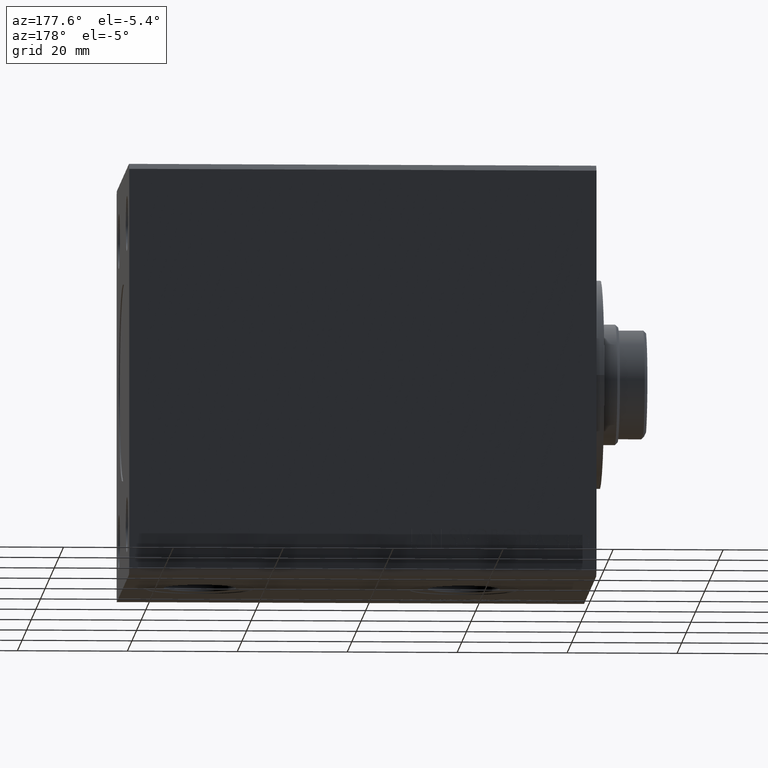
[diagram: clean part render]
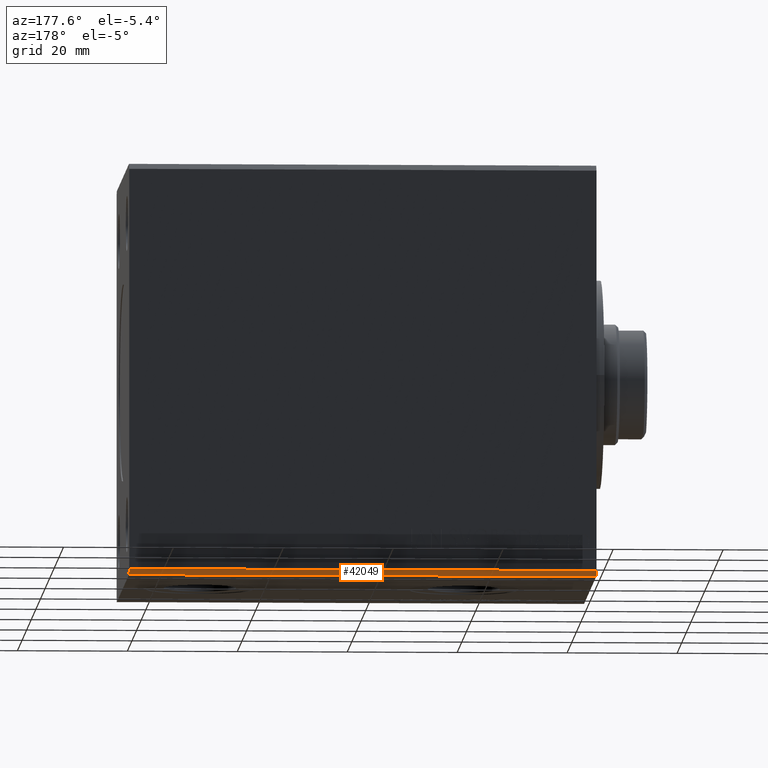
[diagram: same view with one face highlighted and labeled with its STEP entity id]
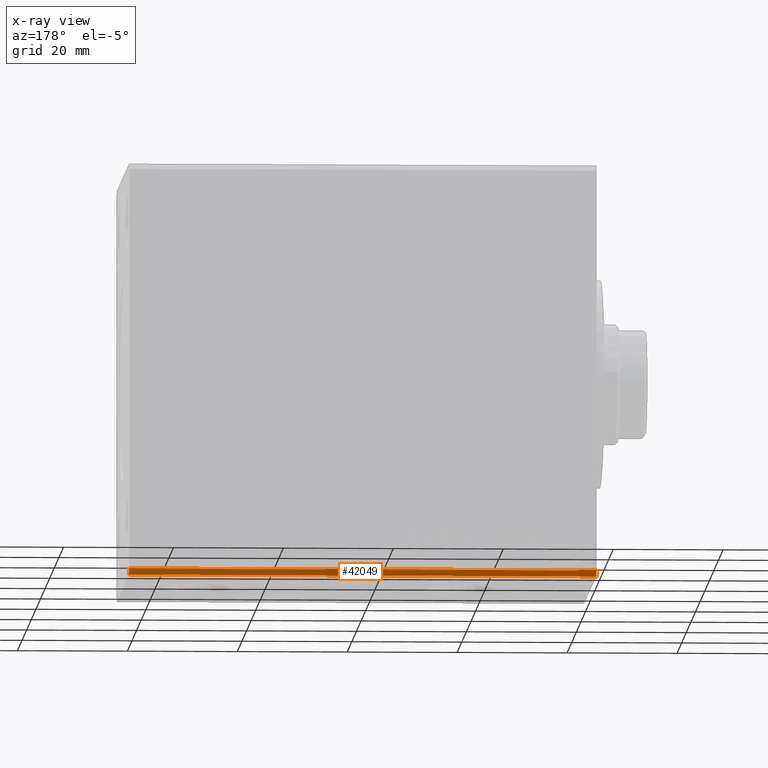
[diagram: x-ray of the same camera — body ghosted, the highlighted face saturated]
A machine part, auxiliary view. The second image highlights one B-rep face of the part: STEP entity #42049.
The next image is the same camera in x-ray: the body ghosted, the highlighted face saturated — about 0% of this face is hidden behind the body in this view.
In plain terms, the highlighted planar face has unit normal (0, -0.7071, 0.7071).
Its self-contained STEP definition (entity closure, byte-faithful):
#765 = DIRECTION ( 'NONE',  ( 0.000000000000000000, 0.7071067811865474617, 0.7071067811865474617 ) ) ;
#1284 = CARTESIAN_POINT ( 'NONE',  ( 85.00000000000000000, 26.50000000000000711, -37.49999999999999289 ) ) ;
#1953 = CARTESIAN_POINT ( 'NONE',  ( 0.000000000000000000, 27.50000000000000711, -36.49999999999999289 ) ) ;
#2169 = VECTOR ( 'NONE', #21102, 1000.000000000000000 ) ;
#2299 = VERTEX_POINT ( 'NONE', #1953 ) ;
#4715 = EDGE_CURVE ( 'NONE', #28725, #37447, #31591, .T. ) ;
#7520 = LINE ( 'NONE', #28467, #2169 ) ;
#7631 = FACE_OUTER_BOUND ( 'NONE', #33090, .T. ) ;
#7947 = CARTESIAN_POINT ( 'NONE',  ( 85.00000000000000000, 26.50000000000000711, -37.49999999999999289 ) ) ;
#9024 = EDGE_CURVE ( 'NONE', #17142, #2299, #7520, .T. ) ;
#9328 = EDGE_CURVE ( 'NONE', #28725, #17142, #37830, .T. ) ;
#10542 = ORIENTED_EDGE ( 'NONE', *, *, #9328, .F. ) ;
#11172 = DIRECTION ( 'NONE',  ( 0.000000000000000000, -0.7071067811865474617, -0.7071067811865474617 ) ) ;
#11195 = CARTESIAN_POINT ( 'NONE',  ( 0.000000000000000000, 26.50000000000000711, -37.49999999999999289 ) ) ;
#13637 = AXIS2_PLACEMENT_3D ( 'NONE', #41993, #21212, #11172 ) ;
#17142 = VERTEX_POINT ( 'NONE', #27375 ) ;
#17457 = ORIENTED_EDGE ( 'NONE', *, *, #4715, .T. ) ;
#18307 = PLANE ( 'NONE',  #13637 ) ;
#20834 = CARTESIAN_POINT ( 'NONE',  ( 85.00000000000000000, 26.50000000000000711, -37.49999999999999289 ) ) ;
#21102 = DIRECTION ( 'NONE',  ( -1.000000000000000000, -0.000000000000000000, -0.000000000000000000 ) ) ;
#21212 = DIRECTION ( 'NONE',  ( 0.000000000000000000, -0.7071067811865475727, 0.7071067811865475727 ) ) ;
#22470 = ORIENTED_EDGE ( 'NONE', *, *, #9024, .F. ) ;
#27375 = CARTESIAN_POINT ( 'NONE',  ( 85.00000000000000000, 27.50000000000000711, -36.49999999999999289 ) ) ;
#28014 = DIRECTION ( 'NONE',  ( -1.000000000000000000, -0.000000000000000000, -0.000000000000000000 ) ) ;
#28467 = CARTESIAN_POINT ( 'NONE',  ( 85.00000000000000000, 27.50000000000000711, -36.49999999999999289 ) ) ;
#28725 = VERTEX_POINT ( 'NONE', #1284 ) ;
#31166 = EDGE_CURVE ( 'NONE', #37447, #2299, #35764, .T. ) ;
#31591 = LINE ( 'NONE', #7947, #38003 ) ;
#33014 = CARTESIAN_POINT ( 'NONE',  ( 0.000000000000000000, 26.50000000000000711, -37.49999999999999289 ) ) ;
#33090 = EDGE_LOOP ( 'NONE', ( #38128, #22470, #10542, #17457 ) ) ;
#35764 = LINE ( 'NONE', #11195, #37020 ) ;
#37020 = VECTOR ( 'NONE', #39104, 1000.000000000000114 ) ;
#37447 = VERTEX_POINT ( 'NONE', #33014 ) ;
#37830 = LINE ( 'NONE', #20834, #41406 ) ;
#38003 = VECTOR ( 'NONE', #28014, 1000.000000000000000 ) ;
#38128 = ORIENTED_EDGE ( 'NONE', *, *, #31166, .T. ) ;
#39104 = DIRECTION ( 'NONE',  ( 0.000000000000000000, 0.7071067811865474617, 0.7071067811865474617 ) ) ;
#41406 = VECTOR ( 'NONE', #765, 1000.000000000000114 ) ;
#41993 = CARTESIAN_POINT ( 'NONE',  ( 85.00000000000000000, 26.50000000000000711, -37.49999999999999289 ) ) ;
#42049 = ADVANCED_FACE ( 'NONE', ( #7631 ), #18307, .F. ) ;